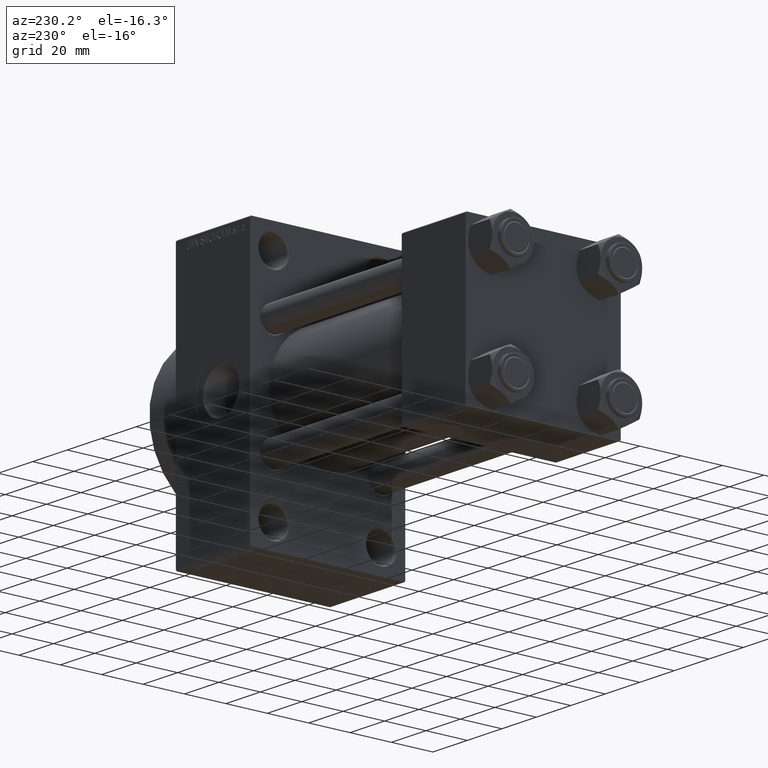
[diagram: clean part render]
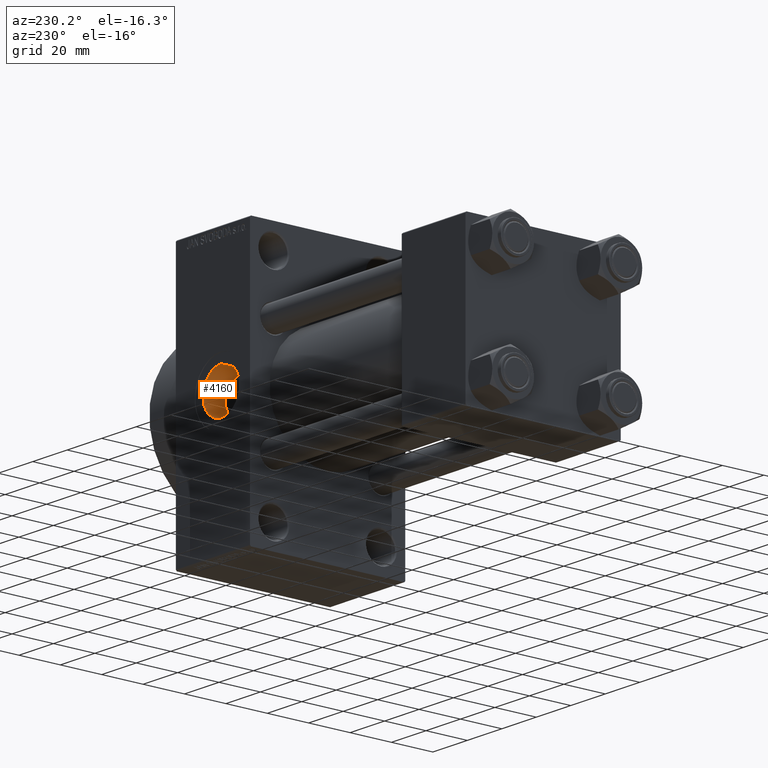
[diagram: same view with one face highlighted and labeled with its STEP entity id]
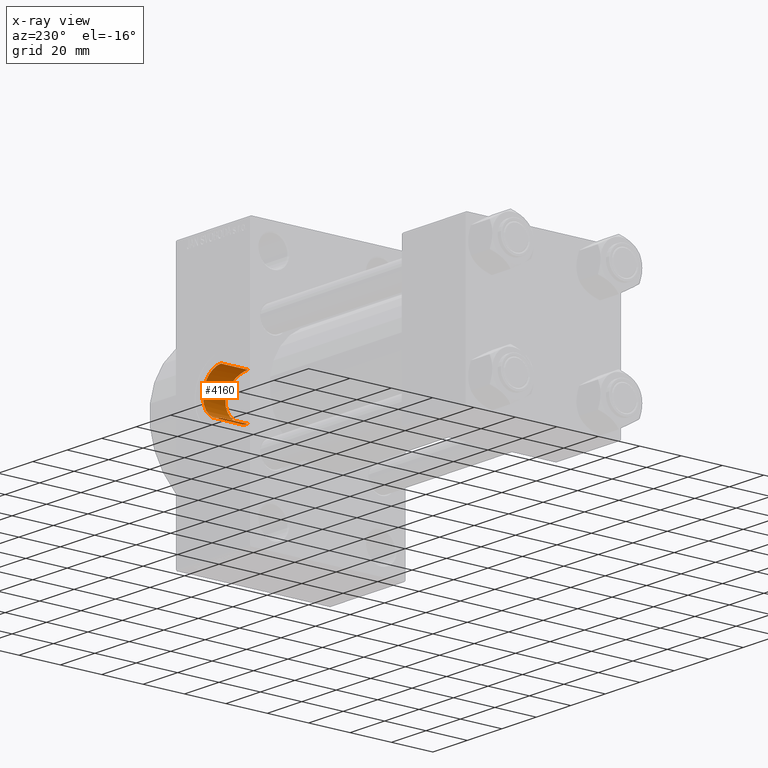
[diagram: x-ray of the same camera — body ghosted, the highlighted face saturated]
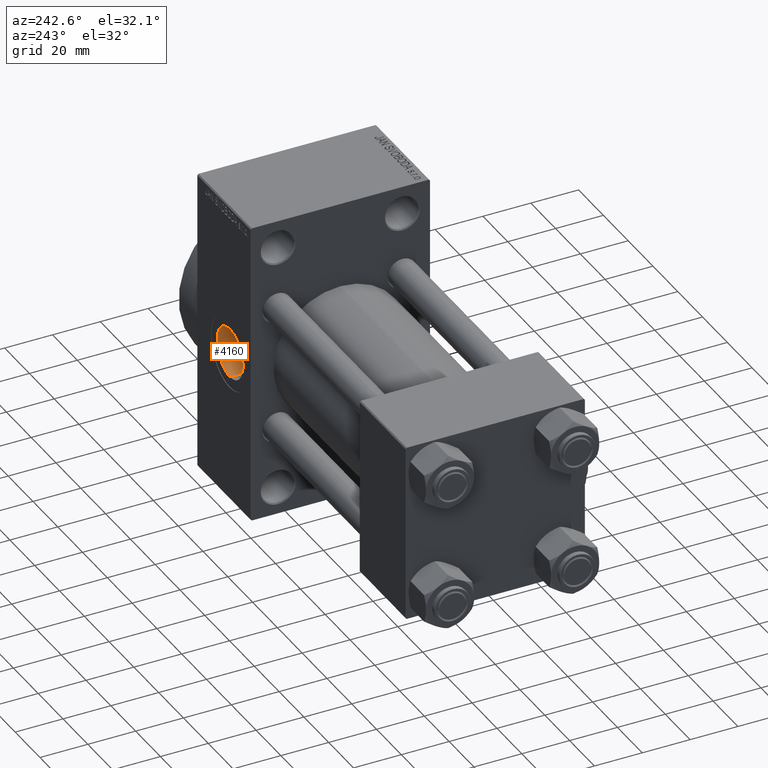
[diagram: same view with one face highlighted and labeled with its STEP entity id]
A machine part, auxiliary view. The second image highlights one B-rep face of the part: STEP entity #4160.
The next image is the same camera in x-ray: the body ghosted, the highlighted face saturated — about 0% of this face is hidden behind the body in this view.
A second angle (auxiliary view) of the same face is appended — the face is thin or edge-on in the first view.
In plain terms, the highlighted cylindrical surface (edge-blend (fillet) strip) has radius 10.48 mm, axis along (0, 1, 0).
Its self-contained STEP definition (entity closure, byte-faithful):
#12 = CARTESIAN_POINT ( 'NONE',  ( 149.1663633815065566, 25.37171319999175267, -7.654298772871977796 ) ) ;
#72 = DIRECTION ( 'NONE',  ( 0.000000000000000000, 0.000000000000000000, 1.000000000000000000 ) ) ;
#489 = CARTESIAN_POINT ( 'NONE',  ( 151.5385175848662982, 26.14168889184969657, -4.354785931857517056 ) ) ;
#537 = EDGE_CURVE ( 'NONE', #42468, #4177, #27726, .T. ) ;
#827 = VECTOR ( 'NONE', #19704, 1000.000000000000000 ) ;
#1824 = ORIENTED_EDGE ( 'NONE', *, *, #33940, .F. ) ;
#2725 = CARTESIAN_POINT ( 'NONE',  ( 152.3421836049516855, 26.44572692659851043, 1.728475508984260944 ) ) ;
#2977 = CARTESIAN_POINT ( 'NONE',  ( 142.6904960883778131, 24.33967132070605288, 10.47999999999998622 ) ) ;
#3937 = CARTESIAN_POINT ( 'NONE',  ( 151.8022638174866756, 26.23907308479210343, -3.723318718764344837 ) ) ;
#4141 = VERTEX_POINT ( 'NONE', #47317 ) ;
#4160 = ADVANCED_FACE ( 'NONE', ( #14596 ), #19485, .F. ) ;
#4177 = VERTEX_POINT ( 'NONE', #41632 ) ;
#6061 = AXIS2_PLACEMENT_3D ( 'NONE', #15630, #48191, #43996 ) ;
#6179 = CARTESIAN_POINT ( 'NONE',  ( 142.0000000000000284, 24.33967132070604933, 10.47999999999998444 ) ) ;
#6416 = CARTESIAN_POINT ( 'NONE',  ( 149.8811664359166116, 25.58300917221409776, 6.916171625962121539 ) ) ;
#7148 = CARTESIAN_POINT ( 'NONE',  ( 150.5155153844950178, 25.78569419426081311, 6.118106053452856408 ) ) ;
#8111 = CARTESIAN_POINT ( 'NONE',  ( 142.6982936874239272, 24.33967132070606354, -10.47999999999999332 ) ) ;
#11079 = CARTESIAN_POINT ( 'NONE',  ( 146.6659000583122463, 24.77500862834707362, -9.408993987884874954 ) ) ;
#11560 = CARTESIAN_POINT ( 'NONE',  ( 145.7173844672076370, 24.61993612039165669, -9.804529592362706936 ) ) ;
#11799 = CARTESIAN_POINT ( 'NONE',  ( 148.3864792908362347, 25.16230905708523125, -8.316254619809528847 ) ) ;
#12472 = DIRECTION ( 'NONE',  ( -0.000000000000000000, 1.000000000000000000, -0.000000000000000000 ) ) ;
#13805 = CARTESIAN_POINT ( 'NONE',  ( 149.6501220615577381, 25.51256335955728716, 7.170912732211438545 ) ) ;
#14265 = CARTESIAN_POINT ( 'NONE',  ( 142.0000000000000284, 24.33967132070604933, 10.47999999999998444 ) ) ;
#14284 = CARTESIAN_POINT ( 'NONE',  ( 150.3132647636415129, 25.71940794313461609, 6.390292897823899310 ) ) ;
#14529 = CARTESIAN_POINT ( 'NONE',  ( 146.3489237122697659, 24.72318467201154490, 9.541179571695405315 ) ) ;
#14596 = FACE_OUTER_BOUND ( 'NONE', #26963, .T. ) ;
#14782 = CARTESIAN_POINT ( 'NONE',  ( 152.1219222710723216, 26.36027543327035616, -2.738055544399094376 ) ) ;
#14787 = EDGE_CURVE ( 'NONE', #4141, #4177, #20968, .T. ) ;
#15020 = CARTESIAN_POINT ( 'NONE',  ( 144.3947302122628003, 24.45488967133339386, -10.20851256290625386 ) ) ;
#15501 = CARTESIAN_POINT ( 'NONE',  ( 152.4800680225664564, 26.50002690099940850, 0.3451042088078350445 ) ) ;
#15630 = CARTESIAN_POINT ( 'NONE',  ( 142.0000000000000284, 37.29999999999999005, -2.032879073410320814E-15 ) ) ;
#16263 = CARTESIAN_POINT ( 'NONE',  ( 142.0000000000000284, -29.64191626734003648, 10.47999999999998444 ) ) ;
#16906 = CARTESIAN_POINT ( 'NONE',  ( 142.0000000000000284, -29.64191626734003648, -10.47999999999998799 ) ) ;
#17488 = CARTESIAN_POINT ( 'NONE',  ( 148.4049404352971351, 25.16229795609819675, 8.322848467437518494 ) ) ;
#17737 = CARTESIAN_POINT ( 'NONE',  ( 152.3935590552673318, 26.46591511510091621, 1.387412420731375606 ) ) ;
#17978 = CARTESIAN_POINT ( 'NONE',  ( 147.5577538920436496, 24.96463143003449758, 8.891425016462831010 ) ) ;
#18463 = CARTESIAN_POINT ( 'NONE',  ( 152.4798633477534509, 26.49994595790488461, -0.6963870350870479120 ) ) ;
#19485 = CYLINDRICAL_SURFACE ( 'NONE', #41080, 10.47999999999998622 ) ;
#19704 = DIRECTION ( 'NONE',  ( -0.000000000000000000, 1.000000000000000000, -0.000000000000000000 ) ) ;
#20968 = CIRCLE ( 'NONE', #6061, 10.47999999999998622 ) ;
#21168 = CARTESIAN_POINT ( 'NONE',  ( 143.3786097457406470, 24.36915941385105100, 10.41231194222668321 ) ) ;
#22144 = CARTESIAN_POINT ( 'NONE',  ( 144.7286532048194374, 24.48994387988090438, -10.12445329003760008 ) ) ;
#22638 = CARTESIAN_POINT ( 'NONE',  ( 152.4626037639856406, 26.49310609510639480, 0.6963515910539398446 ) ) ;
#23114 = CARTESIAN_POINT ( 'NONE',  ( 142.0000000000000284, 24.33967132070604933, -10.47999999999998799 ) ) ;
#23404 = LINE ( 'NONE', #16263, #827 ) ;
#23818 = CARTESIAN_POINT ( 'NONE',  ( 142.0000000000000284, 24.33967132070604933, -10.47999999999998799 ) ) ;
#25111 = CARTESIAN_POINT ( 'NONE',  ( 144.7461877943154036, 24.48462605612511567, 10.13781324604276968 ) ) ;
#25854 = CARTESIAN_POINT ( 'NONE',  ( 148.9276451403627277, 25.30216499957183629, 7.893159106980507822 ) ) ;
#26339 = CARTESIAN_POINT ( 'NONE',  ( 150.3165002292777501, 25.71874665637612267, -6.413821170274207617 ) ) ;
#26639 = CARTESIAN_POINT ( 'NONE',  ( 142.0000000000000284, -29.64191626734003648, -2.032879073410320814E-15 ) ) ;
#26820 = CARTESIAN_POINT ( 'NONE',  ( 143.3839948142214951, 24.36973996242158336, -10.41091756284551906 ) ) ;
#26963 = EDGE_LOOP ( 'NONE', ( #43936, #1824, #45096, #47463 ) ) ;
#27053 = CARTESIAN_POINT ( 'NONE',  ( 148.9147507852791819, 25.30155050139244466, -7.882476147205575323 ) ) ;
#27532 = VERTEX_POINT ( 'NONE', #14265 ) ;
#27726 = LINE ( 'NONE', #16906, #47391 ) ;
#28806 = CARTESIAN_POINT ( 'NONE',  ( 151.9389570606565485, 26.28956209411558476, 3.395175965175881938 ) ) ;
#29778 = CARTESIAN_POINT ( 'NONE',  ( 149.8850942087586304, 25.58093385762821725, -6.936447548980000377 ) ) ;
#30018 = CARTESIAN_POINT ( 'NONE',  ( 145.3904700717596938, 24.57248644795725667, -9.922439993611758879 ) ) ;
#30502 = CARTESIAN_POINT ( 'NONE',  ( 152.2075249541715323, 26.39335609204158928, -2.399236127628237902 ) ) ;
#30733 = CARTESIAN_POINT ( 'NONE',  ( 151.0679913760332909, 25.97354752128885025, -5.264851845784578543 ) ) ;
#32043 = EDGE_CURVE ( 'NONE', #27532, #4141, #23404, .T. ) ;
#33940 = EDGE_CURVE ( 'NONE', #27532, #42468, #36351, .T. ) ;
#35941 = CARTESIAN_POINT ( 'NONE',  ( 151.0816778311289568, 25.97633853132261450, 5.273786452924785983 ) ) ;
#36184 = CARTESIAN_POINT ( 'NONE',  ( 145.4024368383432204, 24.56844862672226881, 9.935854460437951730 ) ) ;
#36351 = B_SPLINE_CURVE_WITH_KNOTS ( 'NONE', 3,
 ( #6179, #2977, #21168, #25111, #36184, #14529, #40848, #43809, #17978, #17488, #25854, #13805, #6416, #14284, #7148, #35941, #47508, #28806, #40118, #2725, #17737, #22638, #15501, #18463, #42049, #30502, #14782, #45271, #3937, #489, #41810, #30733, #45507, #26339, #29778, #12, #27053, #11799, #37399, #44787, #11079, #11560, #30018, #22144, #15020, #26820, #8111, #23114 ),
 .UNSPECIFIED., .F., .F.,
 ( 4, 2, 2, 2, 2, 2, 2, 2, 2, 2, 2, 2, 2, 2, 2, 2, 2, 2, 2, 2, 2, 2, 2, 4 ),
 ( 0.001255586767787714641, 0.003325356817179754218, 0.005395126866571793578, 0.006430011891267848820, 0.007464896915963904929, 0.009534666965355945156, 0.01056955199005196744, 0.01160443701474798799, 0.01367420706413998571, 0.01574397711353198170, 0.01677886213822797970, 0.01781374716292397770, 0.01988351721231597369, 0.02091840223701197168, 0.02195328726170796621, 0.02298817228640396421, 0.02402305731109996220, 0.02609282736049195819, 0.02712771238518795966, 0.02816259740988395419, 0.03023236745927595365, 0.03126725248397198981, 0.03230213750866802597, 0.03437190755806009829 ),
 .UNSPECIFIED. ) ;
#37399 = CARTESIAN_POINT ( 'NONE',  ( 148.1110651716822701, 25.09360970262139645, -8.520611273842991551 ) ) ;
#40118 = CARTESIAN_POINT ( 'NONE',  ( 152.1391112229687792, 26.36675217432884466, 2.738755341944244748 ) ) ;
#40848 = CARTESIAN_POINT ( 'NONE',  ( 146.6580558779861008, 24.77960996754317691, 9.394203453174519325 ) ) ;
#41080 = AXIS2_PLACEMENT_3D ( 'NONE', #26639, #41398, #72 ) ;
#41398 = DIRECTION ( 'NONE',  ( -0.000000000000000000, 1.000000000000000000, -0.000000000000000000 ) ) ;
#41632 = CARTESIAN_POINT ( 'NONE',  ( 142.0000000000000284, 37.29999999999999005, -10.47999999999998799 ) ) ;
#41810 = CARTESIAN_POINT ( 'NONE',  ( 151.3916535229813860, 26.08830885934474608, -4.663043711798784408 ) ) ;
#42049 = CARTESIAN_POINT ( 'NONE',  ( 152.4114040688937735, 26.47265107862981282, -1.382412405478185446 ) ) ;
#42468 = VERTEX_POINT ( 'NONE', #23818 ) ;
#43809 = CARTESIAN_POINT ( 'NONE',  ( 147.2635990777562256, 24.90054338428140923, 9.068796382691632019 ) ) ;
#43936 = ORIENTED_EDGE ( 'NONE', *, *, #537, .F. ) ;
#43996 = DIRECTION ( 'NONE',  ( 0.000000000000000000, 0.000000000000000000, 1.000000000000000000 ) ) ;
#44787 = CARTESIAN_POINT ( 'NONE',  ( 147.2636119660473639, 24.89625137302611080, -9.087734872939158492 ) ) ;
#45096 = ORIENTED_EDGE ( 'NONE', *, *, #32043, .T. ) ;
#45271 = CARTESIAN_POINT ( 'NONE',  ( 151.9191483855533704, 26.28308039691836129, -3.400110870430088195 ) ) ;
#45507 = CARTESIAN_POINT ( 'NONE',  ( 150.8904987776702455, 25.91192981801192019, -5.559420023815748735 ) ) ;
#47317 = CARTESIAN_POINT ( 'NONE',  ( 142.0000000000000284, 37.29999999999999005, 10.47999999999998444 ) ) ;
#47391 = VECTOR ( 'NONE', #12472, 1000.000000000000000 ) ;
#47463 = ORIENTED_EDGE ( 'NONE', *, *, #14787, .T. ) ;
#47508 = CARTESIAN_POINT ( 'NONE',  ( 151.4057128516256228, 26.09263577897064224, 4.673612418766440513 ) ) ;
#48191 = DIRECTION ( 'NONE',  ( 0.000000000000000000, 1.000000000000000000, 0.000000000000000000 ) ) ;